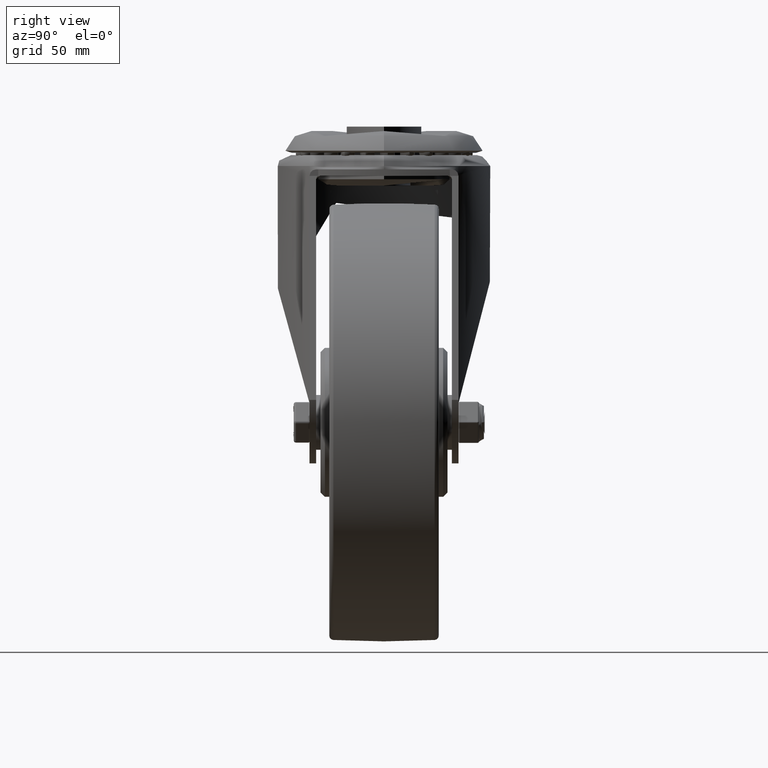
[diagram: clean part render]
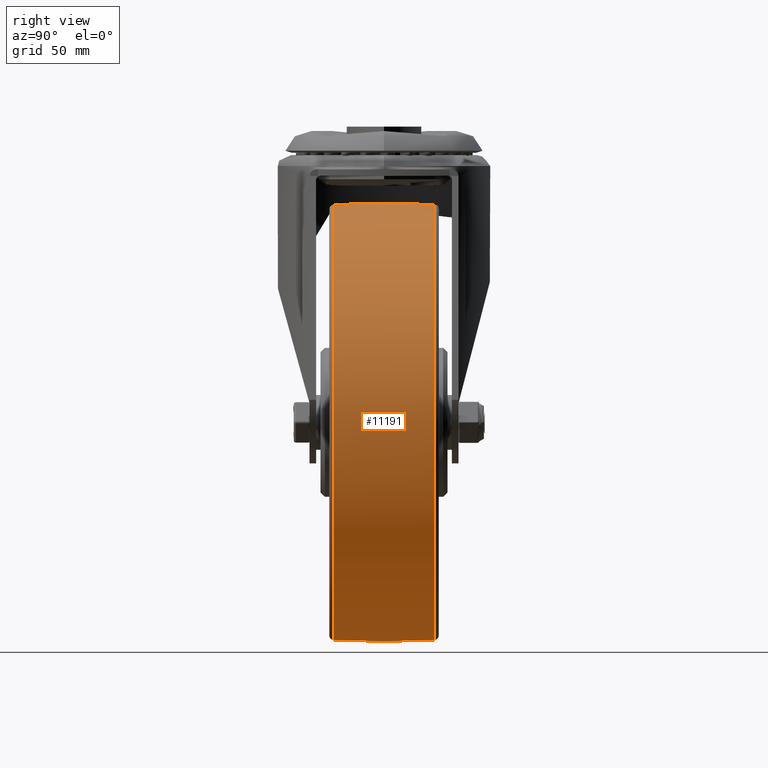
[diagram: same view with one face highlighted and labeled with its STEP entity id]
A machine part, right view. The second image highlights one B-rep face of the part: STEP entity #11191.
In plain terms, the highlighted face is a freeform B-spline surface patch.
Its self-contained STEP definition (entity closure, byte-faithful):
#1659=(
BOUNDED_SURFACE()
B_SPLINE_SURFACE(2,2,((#15880,#15881,#15882,#15883,#15884,#15885,#15886,
#15887,#15888),(#15889,#15890,#15891,#15892,#15893,#15894,#15895,#15896,
#15897),(#15898,#15899,#15900,#15901,#15902,#15903,#15904,#15905,#15906)),
 .UNSPECIFIED.,.F.,.T.,.F.)
B_SPLINE_SURFACE_WITH_KNOTS((3,3),(3,2,2,2,3),(-0.0554445254734275,0.0554445254734272),
(-3.14159265358979,-1.5707963267949,0.,1.5707963267949,3.14159265358979),
 .UNSPECIFIED.)
GEOMETRIC_REPRESENTATION_ITEM()
RATIONAL_B_SPLINE_SURFACE(((1.,0.707106781186548,1.,0.707106781186548,1.,
0.707106781186548,1.,0.707106781186548,1.),(0.998463346009739,0.706020202729697,
0.998463346009739,0.706020202729697,0.998463346009739,0.706020202729697,
0.998463346009739,0.706020202729697,0.998463346009739),(1.,0.707106781186548,
1.,0.707106781186548,1.,0.707106781186548,1.,0.707106781186548,1.)))
REPRESENTATION_ITEM('')
SURFACE()
);
#1683=FACE_OUTER_BOUND('',#2364,.T.);
#2364=EDGE_LOOP('',(#7758,#7759,#7760,#7761));
#4621=CIRCLE('',#12086,99.3591512588263);
#4622=CIRCLE('',#12087,417.04166666667);
#4623=CIRCLE('',#12088,99.3591512588262);
#5022=VERTEX_POINT('',#15877);
#5023=VERTEX_POINT('',#15907);
#6113=EDGE_CURVE('',#5022,#5022,#4621,.T.);
#6114=EDGE_CURVE('',#5022,#5023,#4622,.T.);
#6115=EDGE_CURVE('',#5023,#5023,#4623,.T.);
#7758=ORIENTED_EDGE('',*,*,#6113,.F.);
#7759=ORIENTED_EDGE('',*,*,#6114,.T.);
#7760=ORIENTED_EDGE('',*,*,#6115,.T.);
#7761=ORIENTED_EDGE('',*,*,#6114,.F.);
#11191=ADVANCED_FACE('',(#1683),#1659,.F.);
#12086=AXIS2_PLACEMENT_3D('',#15879,#13121,#13122);
#12087=AXIS2_PLACEMENT_3D('',#15908,#13123,#13124);
#12088=AXIS2_PLACEMENT_3D('',#15909,#13125,#13126);
#13121=DIRECTION('center_axis',(0.,-1.,0.));
#13122=DIRECTION('ref_axis',(0.,0.,1.));
#13123=DIRECTION('center_axis',(-1.,0.,-1.22464679914735E-16));
#13124=DIRECTION('ref_axis',(-1.22464679914735E-16,0.,1.));
#13125=DIRECTION('center_axis',(0.,-1.,0.));
#13126=DIRECTION('ref_axis',(0.,0.,1.));
#15877=CARTESIAN_POINT('',(0.,-23.1108322457584,99.3591512588263));
#15879=CARTESIAN_POINT('Origin',(0.,-23.1108322457584,0.));
#15880=CARTESIAN_POINT('Ctrl Pts',(0.,23.1108322457583,99.3591512588263));
#15881=CARTESIAN_POINT('Ctrl Pts',(-99.3591512588263,23.1108322457583,99.3591512588263));
#15882=CARTESIAN_POINT('Ctrl Pts',(-99.3591512588263,23.1108322457583,0.));
#15883=CARTESIAN_POINT('Ctrl Pts',(-99.3591512588263,23.1108322457583,-99.3591512588263));
#15884=CARTESIAN_POINT('Ctrl Pts',(0.,23.1108322457583,-99.3591512588263));
#15885=CARTESIAN_POINT('Ctrl Pts',(99.3591512588263,23.1108322457583,-99.3591512588263));
#15886=CARTESIAN_POINT('Ctrl Pts',(99.3591512588263,23.1108322457583,0.));
#15887=CARTESIAN_POINT('Ctrl Pts',(99.3591512588263,23.1108322457583,99.3591512588263));
#15888=CARTESIAN_POINT('Ctrl Pts',(0.,23.1108322457583,99.3591512588263));
#15889=CARTESIAN_POINT('Ctrl Pts',(0.,-4.88498130835069E-14,100.641835019518));
#15890=CARTESIAN_POINT('Ctrl Pts',(-100.641835019518,-4.88498130835069E-14,
100.641835019518));
#15891=CARTESIAN_POINT('Ctrl Pts',(-100.641835019518,-4.88498130835069E-14,
0.));
#15892=CARTESIAN_POINT('Ctrl Pts',(-100.641835019518,-4.88498130835069E-14,
-100.641835019518));
#15893=CARTESIAN_POINT('Ctrl Pts',(0.,-4.88498130835069E-14,-100.641835019518));
#15894=CARTESIAN_POINT('Ctrl Pts',(100.641835019518,-4.88498130835069E-14,
-100.641835019518));
#15895=CARTESIAN_POINT('Ctrl Pts',(100.641835019518,-4.88498130835069E-14,
0.));
#15896=CARTESIAN_POINT('Ctrl Pts',(100.641835019518,-4.88498130835069E-14,
100.641835019518));
#15897=CARTESIAN_POINT('Ctrl Pts',(0.,-4.88498130835069E-14,100.641835019518));
#15898=CARTESIAN_POINT('Ctrl Pts',(0.,-23.1108322457584,99.3591512588263));
#15899=CARTESIAN_POINT('Ctrl Pts',(-99.3591512588263,-23.1108322457584,
99.3591512588263));
#15900=CARTESIAN_POINT('Ctrl Pts',(-99.3591512588263,-23.1108322457584,
0.));
#15901=CARTESIAN_POINT('Ctrl Pts',(-99.3591512588263,-23.1108322457584,
-99.3591512588263));
#15902=CARTESIAN_POINT('Ctrl Pts',(0.,-23.1108322457584,-99.3591512588263));
#15903=CARTESIAN_POINT('Ctrl Pts',(99.3591512588263,-23.1108322457584,-99.3591512588263));
#15904=CARTESIAN_POINT('Ctrl Pts',(99.3591512588263,-23.1108322457584,0.));
#15905=CARTESIAN_POINT('Ctrl Pts',(99.3591512588263,-23.1108322457584,99.3591512588263));
#15906=CARTESIAN_POINT('Ctrl Pts',(0.,-23.1108322457584,99.3591512588263));
#15907=CARTESIAN_POINT('',(0.,23.1108322457583,99.3591512588262));
#15908=CARTESIAN_POINT('Origin',(3.8826406227968E-14,-1.19013595275183E-13,
-317.04166666667));
#15909=CARTESIAN_POINT('Origin',(0.,23.1108322457583,0.));